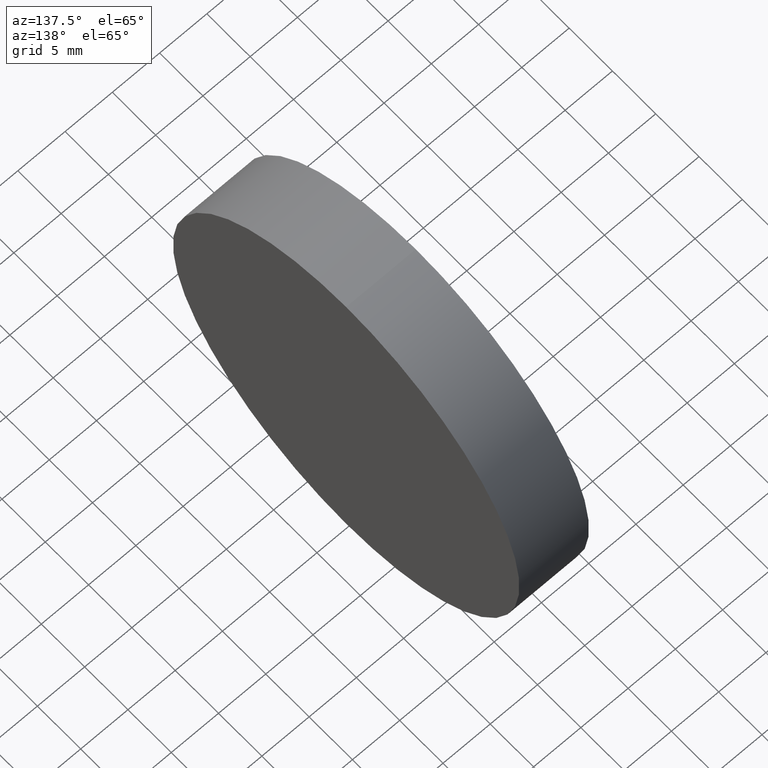
[diagram: clean part render]
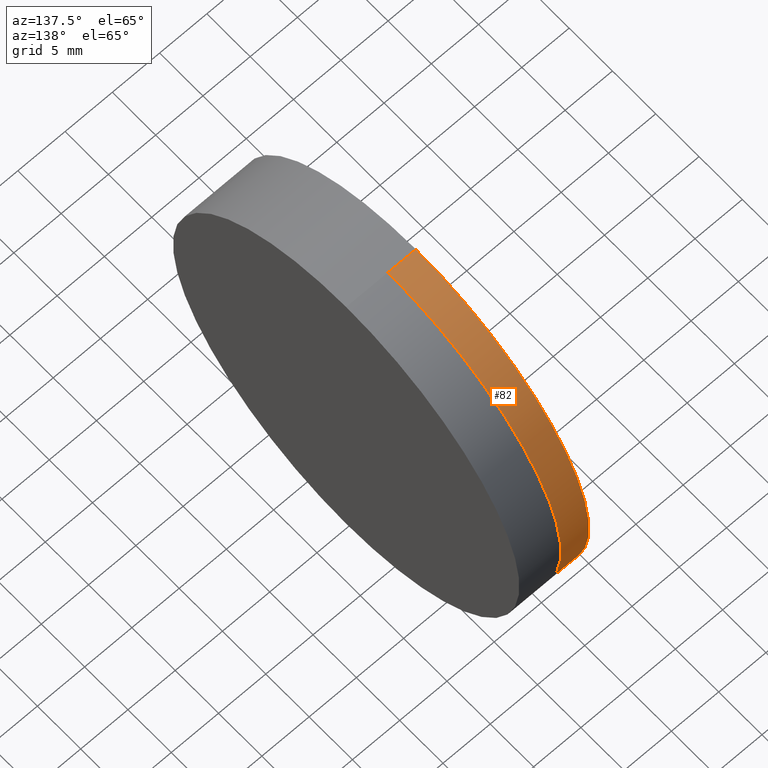
[diagram: same view with one face highlighted and labeled with its STEP entity id]
A machine part, auxiliary view. The second image highlights one B-rep face of the part: STEP entity #82.
In plain terms, the highlighted cylindrical surface (partial cylindrical patch) has radius 20 mm, axis along (-1, -0, -0).
Its self-contained STEP definition (entity closure, byte-faithful):
#2 = LINE ( 'NONE', #231, #249 ) ;
#3 = EDGE_CURVE ( 'NONE', #164, #226, #185, .T. ) ;
#13 = DIRECTION ( 'NONE',  ( 0.0000000000000000000, 0.0000000000000000000, 1.000000000000000000 ) ) ;
#25 = AXIS2_PLACEMENT_3D ( 'NONE', #239, #57, #81 ) ;
#28 = EDGE_CURVE ( 'NONE', #226, #96, #271, .T. ) ;
#32 = AXIS2_PLACEMENT_3D ( 'NONE', #109, #234, #115 ) ;
#57 = DIRECTION ( 'NONE',  ( -1.000000000000000000, -0.0000000000000000000, -0.0000000000000000000 ) ) ;
#60 = CARTESIAN_POINT ( 'NONE',  ( 657.5142120742816600, 0.0000000000000000000, 19.99999999999986500 ) ) ;
#63 = EDGE_CURVE ( 'NONE', #99, #96, #2, .T. ) ;
#65 = AXIS2_PLACEMENT_3D ( 'NONE', #80, #178, #13 ) ;
#66 = EDGE_LOOP ( 'NONE', ( #165, #168, #157, #201 ) ) ;
#73 = CIRCLE ( 'NONE', #65, 19.99999999999986500 ) ;
#80 = CARTESIAN_POINT ( 'NONE',  ( 657.5142120742816600, 0.0000000000000000000, 0.0000000000000000000 ) ) ;
#81 = DIRECTION ( 'NONE',  ( 0.0000000000000000000, 0.0000000000000000000, 1.000000000000000000 ) ) ;
#82 = ADVANCED_FACE ( 'NONE', ( #312 ), #100, .T. ) ;
#96 = VERTEX_POINT ( 'NONE', #307 ) ;
#99 = VERTEX_POINT ( 'NONE', #265 ) ;
#100 = CYLINDRICAL_SURFACE ( 'NONE', #32, 19.99999999999986500 ) ;
#109 = CARTESIAN_POINT ( 'NONE',  ( 124.5233095260452400, 0.0000000000000000000, 0.0000000000000000000 ) ) ;
#112 = DIRECTION ( 'NONE',  ( -1.000000000000000000, -0.0000000000000000000, -0.0000000000000000000 ) ) ;
#115 = DIRECTION ( 'NONE',  ( 0.0000000000000000000, 0.0000000000000000000, 1.000000000000000000 ) ) ;
#157 = ORIENTED_EDGE ( 'NONE', *, *, #28, .F. ) ;
#164 = VERTEX_POINT ( 'NONE', #60 ) ;
#165 = ORIENTED_EDGE ( 'NONE', *, *, #174, .T. ) ;
#168 = ORIENTED_EDGE ( 'NONE', *, *, #63, .T. ) ;
#174 = EDGE_CURVE ( 'NONE', #164, #99, #73, .T. ) ;
#178 = DIRECTION ( 'NONE',  ( -1.000000000000000000, -0.0000000000000000000, -0.0000000000000000000 ) ) ;
#185 = LINE ( 'NONE', #261, #221 ) ;
#201 = ORIENTED_EDGE ( 'NONE', *, *, #3, .F. ) ;
#213 = DIRECTION ( 'NONE',  ( -1.000000000000000000, -0.0000000000000000000, -0.0000000000000000000 ) ) ;
#221 = VECTOR ( 'NONE', #112, 1000.000000000000000 ) ;
#226 = VERTEX_POINT ( 'NONE', #308 ) ;
#231 = CARTESIAN_POINT ( 'NONE',  ( 124.5233095260452400, 2.449293598294689900E-015, -19.99999999999986500 ) ) ;
#234 = DIRECTION ( 'NONE',  ( -1.000000000000000000, -0.0000000000000000000, -0.0000000000000000000 ) ) ;
#239 = CARTESIAN_POINT ( 'NONE',  ( 654.5442827078192100, 0.0000000000000000000, 0.0000000000000000000 ) ) ;
#249 = VECTOR ( 'NONE', #213, 1000.000000000000000 ) ;
#261 = CARTESIAN_POINT ( 'NONE',  ( 124.5233095260452400, 0.0000000000000000000, 19.99999999999986500 ) ) ;
#265 = CARTESIAN_POINT ( 'NONE',  ( 657.5142120742816600, 2.449293598294689900E-015, -19.99999999999986500 ) ) ;
#271 = CIRCLE ( 'NONE', #25, 19.99999999999986100 ) ;
#307 = CARTESIAN_POINT ( 'NONE',  ( 654.5442827078192100, 2.449293598294685600E-015, -19.99999999999996400 ) ) ;
#308 = CARTESIAN_POINT ( 'NONE',  ( 654.5442827078192100, 0.0000000000000000000, 19.99999999999982900 ) ) ;
#312 = FACE_OUTER_BOUND ( 'NONE', #66, .T. ) ;